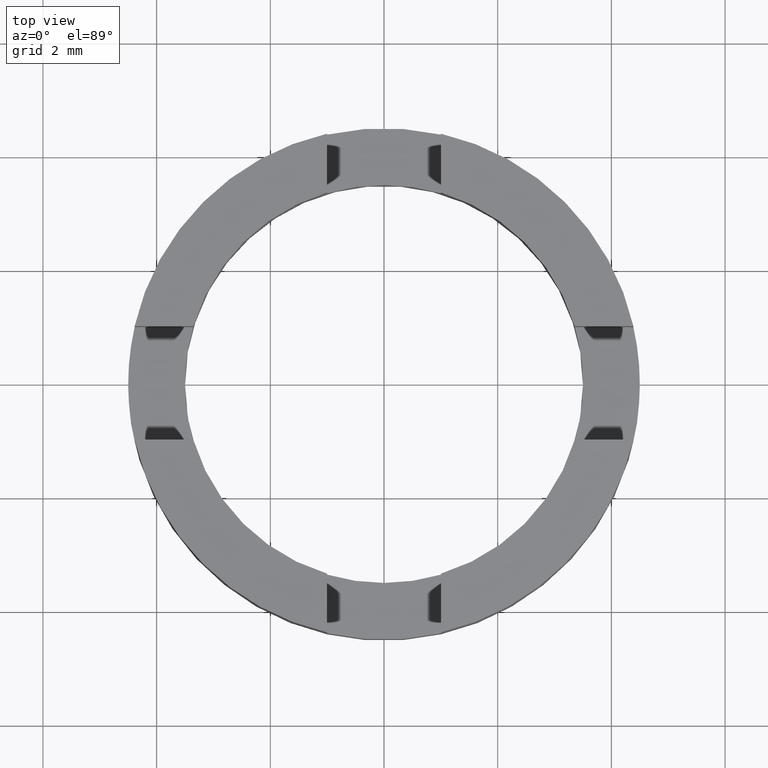
[diagram: clean part render]
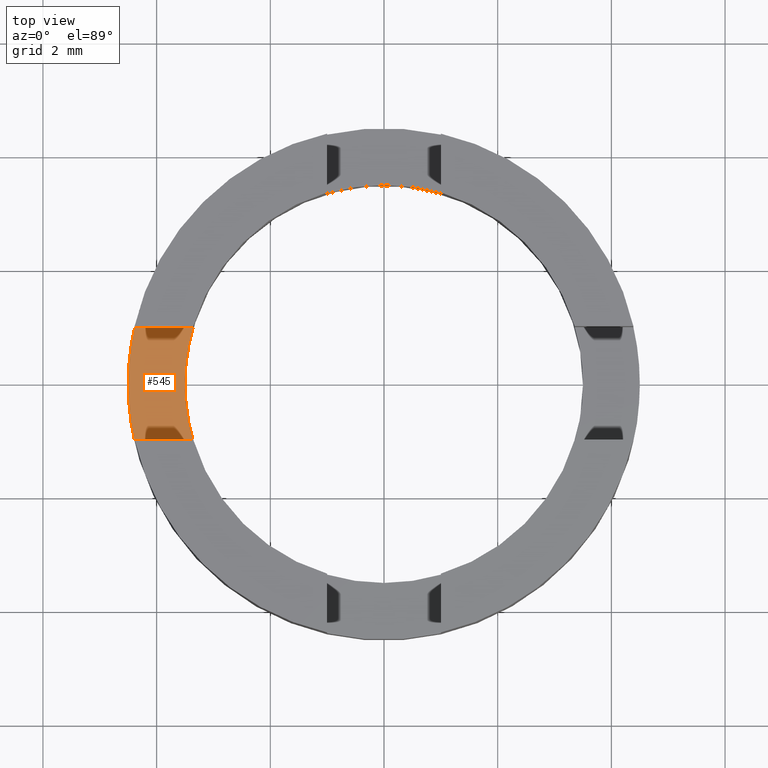
[diagram: same view with one face highlighted and labeled with its STEP entity id]
A machine part, top view. The second image highlights one B-rep face of the part: STEP entity #545.
In plain terms, the highlighted planar face has unit normal (0, 0, -1).
Its self-contained STEP definition (entity closure, byte-faithful):
#2 = CARTESIAN_POINT ( 'NONE',  ( 0.000000000000000000, 0.000000000000000000, 1.000000000000000000 ) ) ;
#15 = ORIENTED_EDGE ( 'NONE', *, *, #717, .F. ) ;
#24 = VERTEX_POINT ( 'NONE', #235 ) ;
#28 = EDGE_LOOP ( 'NONE', ( #584, #370, #783, #381, #400, #15 ) ) ;
#38 = DIRECTION ( 'NONE',  ( -1.000000000000000000, 0.000000000000000000, 0.000000000000000000 ) ) ;
#77 = DIRECTION ( 'NONE',  ( 1.000000000000000000, 2.558646401551673950E-16, -0.000000000000000000 ) ) ;
#82 = EDGE_CURVE ( 'NONE', #412, #275, #720, .T. ) ;
#93 = CARTESIAN_POINT ( 'NONE',  ( 0.000000000000000000, 0.000000000000000000, 1.000000000000000000 ) ) ;
#112 = DIRECTION ( 'NONE',  ( -1.000000000000000000, 0.000000000000000000, -0.000000000000000000 ) ) ;
#118 = DIRECTION ( 'NONE',  ( 0.000000000000000000, -0.000000000000000000, -1.000000000000000000 ) ) ;
#121 = CIRCLE ( 'NONE', #237, 4.500000000000000000 ) ;
#138 = CARTESIAN_POINT ( 'NONE',  ( -4.387482193696129684, 0.9999999999996975752, 1.000000000000000000 ) ) ;
#183 = CIRCLE ( 'NONE', #473, 4.500000000000000000 ) ;
#185 = EDGE_CURVE ( 'NONE', #525, #394, #300, .T. ) ;
#186 = DIRECTION ( 'NONE',  ( 0.000000000000000000, -0.000000000000000000, -1.000000000000000000 ) ) ;
#188 = EDGE_CURVE ( 'NONE', #288, #525, #201, .T. ) ;
#191 = CARTESIAN_POINT ( 'NONE',  ( 0.000000000000000000, 0.000000000000000000, 1.000000000000000000 ) ) ;
#201 = LINE ( 'NONE', #749, #227 ) ;
#212 = PLANE ( 'NONE',  #392 ) ;
#226 = VECTOR ( 'NONE', #599, 1000.000000000000000 ) ;
#227 = VECTOR ( 'NONE', #77, 1000.000000000000000 ) ;
#235 = CARTESIAN_POINT ( 'NONE',  ( -4.500000000000000000, 0.000000000000000000, 1.000000000000000000 ) ) ;
#237 = AXIS2_PLACEMENT_3D ( 'NONE', #191, #424, #368 ) ;
#275 = VERTEX_POINT ( 'NONE', #138 ) ;
#283 = CARTESIAN_POINT ( 'NONE',  ( -3.354101966249594557, -1.000000000000302203, 1.000000000000000000 ) ) ;
#288 = VERTEX_POINT ( 'NONE', #524 ) ;
#300 = CIRCLE ( 'NONE', #494, 3.500000000000000000 ) ;
#343 = CARTESIAN_POINT ( 'NONE',  ( 0.000000000000000000, 0.000000000000000000, 1.000000000000000000 ) ) ;
#351 = CARTESIAN_POINT ( 'NONE',  ( -2.805037895305852569, 0.9999999999996979083, 1.000000000000000000 ) ) ;
#368 = DIRECTION ( 'NONE',  ( -1.000000000000000000, 0.000000000000000000, 0.000000000000000000 ) ) ;
#370 = ORIENTED_EDGE ( 'NONE', *, *, #188, .T. ) ;
#381 = ORIENTED_EDGE ( 'NONE', *, *, #641, .T. ) ;
#392 = AXIS2_PLACEMENT_3D ( 'NONE', #93, #766, #112 ) ;
#394 = VERTEX_POINT ( 'NONE', #649 ) ;
#400 = ORIENTED_EDGE ( 'NONE', *, *, #82, .T. ) ;
#411 = CARTESIAN_POINT ( 'NONE',  ( -3.354101966249774858, 0.9999999999996977973, 1.000000000000000000 ) ) ;
#412 = VERTEX_POINT ( 'NONE', #411 ) ;
#424 = DIRECTION ( 'NONE',  ( 0.000000000000000000, -0.000000000000000000, -1.000000000000000000 ) ) ;
#443 = CIRCLE ( 'NONE', #765, 3.500000000000000000 ) ;
#473 = AXIS2_PLACEMENT_3D ( 'NONE', #2, #118, #551 ) ;
#494 = AXIS2_PLACEMENT_3D ( 'NONE', #735, #186, #507 ) ;
#507 = DIRECTION ( 'NONE',  ( -1.000000000000000000, 0.000000000000000000, 0.000000000000000000 ) ) ;
#524 = CARTESIAN_POINT ( 'NONE',  ( -4.387482193695992017, -1.000000000000302425, 1.000000000000000000 ) ) ;
#525 = VERTEX_POINT ( 'NONE', #283 ) ;
#527 = FACE_OUTER_BOUND ( 'NONE', #28, .T. ) ;
#545 = ADVANCED_FACE ( 'NONE', ( #527 ), #212, .F. ) ;
#551 = DIRECTION ( 'NONE',  ( -1.000000000000000000, 0.000000000000000000, 0.000000000000000000 ) ) ;
#584 = ORIENTED_EDGE ( 'NONE', *, *, #781, .F. ) ;
#589 = DIRECTION ( 'NONE',  ( 0.000000000000000000, -0.000000000000000000, -1.000000000000000000 ) ) ;
#599 = DIRECTION ( 'NONE',  ( -1.000000000000000000, -2.558646401551675429E-16, 0.000000000000000000 ) ) ;
#641 = EDGE_CURVE ( 'NONE', #394, #412, #443, .T. ) ;
#649 = CARTESIAN_POINT ( 'NONE',  ( -3.500000000000000000, 0.000000000000000000, 1.000000000000000000 ) ) ;
#717 = EDGE_CURVE ( 'NONE', #24, #275, #183, .T. ) ;
#720 = LINE ( 'NONE', #351, #226 ) ;
#735 = CARTESIAN_POINT ( 'NONE',  ( 0.000000000000000000, 0.000000000000000000, 1.000000000000000000 ) ) ;
#749 = CARTESIAN_POINT ( 'NONE',  ( -2.805037895305851681, -1.000000000000301981, 1.000000000000000000 ) ) ;
#765 = AXIS2_PLACEMENT_3D ( 'NONE', #343, #589, #38 ) ;
#766 = DIRECTION ( 'NONE',  ( 0.000000000000000000, 0.000000000000000000, -1.000000000000000000 ) ) ;
#781 = EDGE_CURVE ( 'NONE', #288, #24, #121, .T. ) ;
#783 = ORIENTED_EDGE ( 'NONE', *, *, #185, .T. ) ;